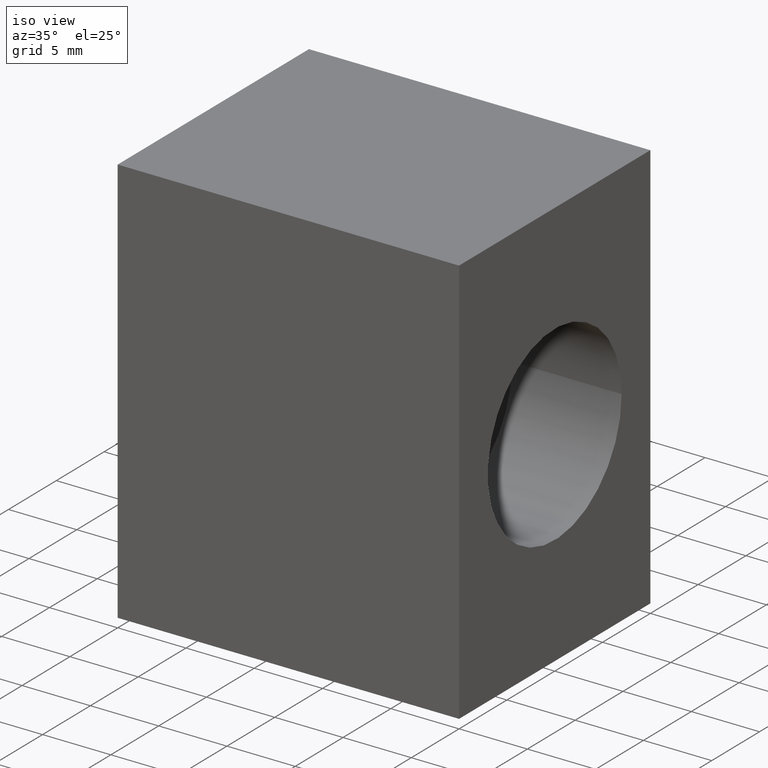
[diagram: clean part render]
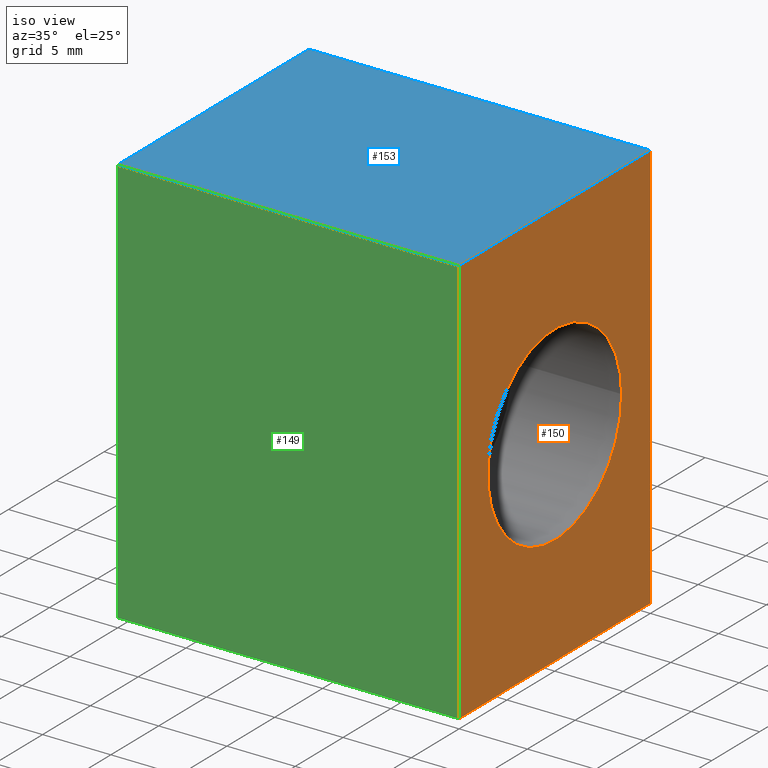
[diagram: same view with three faces highlighted in distinct colors, each labeled with its STEP entity id]
A machine part, iso view with three faces highlighted in distinct colors.
Their STEP definitions:

[orange] entity #150 — the highlighted planar face has unit normal (1, 0, 0).
#16=FACE_BOUND('',#40,.T.);
#20=PLANE('',#186);
#29=FACE_OUTER_BOUND('',#39,.T.);
#39=EDGE_LOOP('',(#125,#126,#127,#128));
#40=EDGE_LOOP('',(#129));
#54=LINE('',#260,#68);
#55=LINE('',#263,#69);
#56=LINE('',#265,#70);
#57=LINE('',#266,#71);
#68=VECTOR('',#217,30.);
#69=VECTOR('',#220,20.);
#70=VECTOR('',#221,20.);
#71=VECTOR('',#222,30.);
#76=CIRCLE('',#182,7.);
#80=VERTEX_POINT('',#241);
#86=VERTEX_POINT('',#256);
#87=VERTEX_POINT('',#258);
#88=VERTEX_POINT('',#262);
#89=VERTEX_POINT('',#264);
#93=EDGE_CURVE('',#80,#80,#76,.T.);
#102=EDGE_CURVE('',#87,#86,#54,.T.);
#103=EDGE_CURVE('',#86,#88,#55,.T.);
#104=EDGE_CURVE('',#87,#89,#56,.T.);
#105=EDGE_CURVE('',#89,#88,#57,.T.);
#125=ORIENTED_EDGE('',*,*,#103,.F.);
#126=ORIENTED_EDGE('',*,*,#102,.F.);
#127=ORIENTED_EDGE('',*,*,#104,.T.);
#128=ORIENTED_EDGE('',*,*,#105,.T.);
#129=ORIENTED_EDGE('',*,*,#93,.T.);
#150=ADVANCED_FACE('',(#29,#16),#20,.T.);
#182=AXIS2_PLACEMENT_3D('',#242,#202,#203);
#186=AXIS2_PLACEMENT_3D('',#261,#218,#219);
#202=DIRECTION('center_axis',(-1.,0.,0.));
#203=DIRECTION('ref_axis',(0.,0.,-1.));
#217=DIRECTION('',(0.,0.,1.));
#218=DIRECTION('center_axis',(1.,0.,0.));
#219=DIRECTION('ref_axis',(0.,0.,-1.));
#220=DIRECTION('',(0.,1.,0.));
#221=DIRECTION('',(0.,1.,0.));
#222=DIRECTION('',(0.,0.,1.));
#241=CARTESIAN_POINT('',(0.,7.00000000000001,-8.57252759403148E-16));
#242=CARTESIAN_POINT('Origin',(0.,0.,0.));
#256=CARTESIAN_POINT('',(0.,-10.,15.));
#258=CARTESIAN_POINT('',(0.,-10.,-15.));
#260=CARTESIAN_POINT('',(0.,-10.,-15.));
#261=CARTESIAN_POINT('Origin',(0.,-11.,16.5));
#262=CARTESIAN_POINT('',(0.,10.,15.));
#263=CARTESIAN_POINT('',(0.,-10.,15.));
#264=CARTESIAN_POINT('',(0.,10.,-15.));
#265=CARTESIAN_POINT('',(0.,-10.,-15.));
#266=CARTESIAN_POINT('',(0.,10.,-15.));

[blue] entity #153 — the highlighted planar face has unit normal (0, 0, 1).
#23=PLANE('',#189);
#32=FACE_OUTER_BOUND('',#43,.T.);
#43=EDGE_LOOP('',(#138,#139,#140,#141));
#48=LINE('',#249,#62);
#52=LINE('',#257,#66);
#55=LINE('',#263,#69);
#58=LINE('',#268,#72);
#62=VECTOR('',#209,20.);
#66=VECTOR('',#215,25.);
#69=VECTOR('',#220,20.);
#72=VECTOR('',#225,25.);
#82=VERTEX_POINT('',#247);
#83=VERTEX_POINT('',#248);
#86=VERTEX_POINT('',#256);
#88=VERTEX_POINT('',#262);
#96=EDGE_CURVE('',#82,#83,#48,.T.);
#100=EDGE_CURVE('',#83,#86,#52,.T.);
#103=EDGE_CURVE('',#86,#88,#55,.T.);
#106=EDGE_CURVE('',#88,#82,#58,.T.);
#138=ORIENTED_EDGE('',*,*,#96,.T.);
#139=ORIENTED_EDGE('',*,*,#100,.T.);
#140=ORIENTED_EDGE('',*,*,#103,.T.);
#141=ORIENTED_EDGE('',*,*,#106,.T.);
#153=ADVANCED_FACE('',(#32),#23,.T.);
#189=AXIS2_PLACEMENT_3D('',#271,#229,#230);
#209=DIRECTION('',(0.,-1.,0.));
#215=DIRECTION('',(1.,0.,0.));
#220=DIRECTION('',(0.,1.,0.));
#225=DIRECTION('',(-1.,0.,0.));
#229=DIRECTION('center_axis',(0.,0.,1.));
#230=DIRECTION('ref_axis',(1.,0.,0.));
#247=CARTESIAN_POINT('',(-25.,10.,15.));
#248=CARTESIAN_POINT('',(-25.,-10.,15.));
#249=CARTESIAN_POINT('',(-25.,10.,15.));
#256=CARTESIAN_POINT('',(0.,-10.,15.));
#257=CARTESIAN_POINT('',(-25.,-10.,15.));
#262=CARTESIAN_POINT('',(0.,10.,15.));
#263=CARTESIAN_POINT('',(0.,-10.,15.));
#268=CARTESIAN_POINT('',(0.,10.,15.));
#271=CARTESIAN_POINT('Origin',(-26.25,-11.,15.));

[green] entity #149 — the highlighted planar face has unit normal (0, -1, 0).
#19=PLANE('',#185);
#28=FACE_OUTER_BOUND('',#38,.T.);
#38=EDGE_LOOP('',(#121,#122,#123,#124));
#51=LINE('',#254,#65);
#52=LINE('',#257,#66);
#53=LINE('',#259,#67);
#54=LINE('',#260,#68);
#65=VECTOR('',#212,30.);
#66=VECTOR('',#215,25.);
#67=VECTOR('',#216,25.);
#68=VECTOR('',#217,30.);
#83=VERTEX_POINT('',#248);
#85=VERTEX_POINT('',#252);
#86=VERTEX_POINT('',#256);
#87=VERTEX_POINT('',#258);
#99=EDGE_CURVE('',#85,#83,#51,.T.);
#100=EDGE_CURVE('',#83,#86,#52,.T.);
#101=EDGE_CURVE('',#85,#87,#53,.T.);
#102=EDGE_CURVE('',#87,#86,#54,.T.);
#121=ORIENTED_EDGE('',*,*,#100,.F.);
#122=ORIENTED_EDGE('',*,*,#99,.F.);
#123=ORIENTED_EDGE('',*,*,#101,.T.);
#124=ORIENTED_EDGE('',*,*,#102,.T.);
#149=ADVANCED_FACE('',(#28),#19,.T.);
#185=AXIS2_PLACEMENT_3D('',#255,#213,#214);
#212=DIRECTION('',(0.,0.,1.));
#213=DIRECTION('center_axis',(0.,-1.,0.));
#214=DIRECTION('ref_axis',(0.,0.,-1.));
#215=DIRECTION('',(1.,0.,0.));
#216=DIRECTION('',(1.,0.,0.));
#217=DIRECTION('',(0.,0.,1.));
#248=CARTESIAN_POINT('',(-25.,-10.,15.));
#252=CARTESIAN_POINT('',(-25.,-10.,-15.));
#254=CARTESIAN_POINT('',(-25.,-10.,-15.));
#255=CARTESIAN_POINT('Origin',(-26.25,-10.,16.5));
#256=CARTESIAN_POINT('',(0.,-10.,15.));
#257=CARTESIAN_POINT('',(-25.,-10.,15.));
#258=CARTESIAN_POINT('',(0.,-10.,-15.));
#259=CARTESIAN_POINT('',(-25.,-10.,-15.));
#260=CARTESIAN_POINT('',(0.,-10.,-15.));